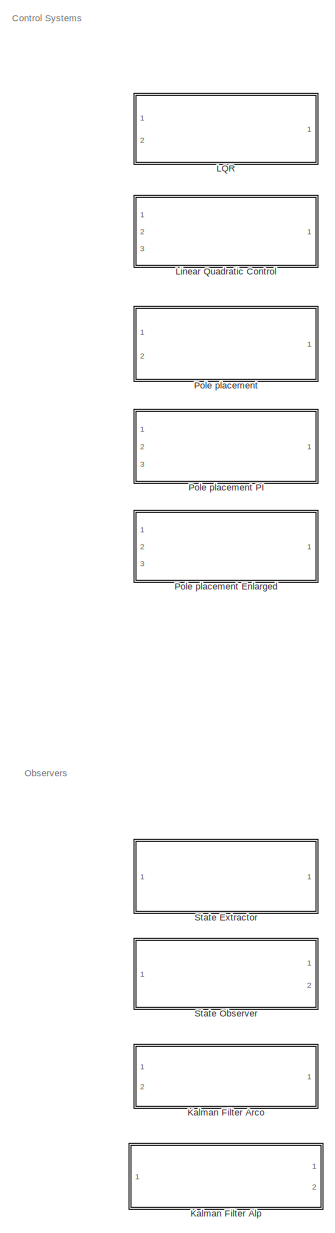
[diagram: root canvas - part 1/5, top left region]
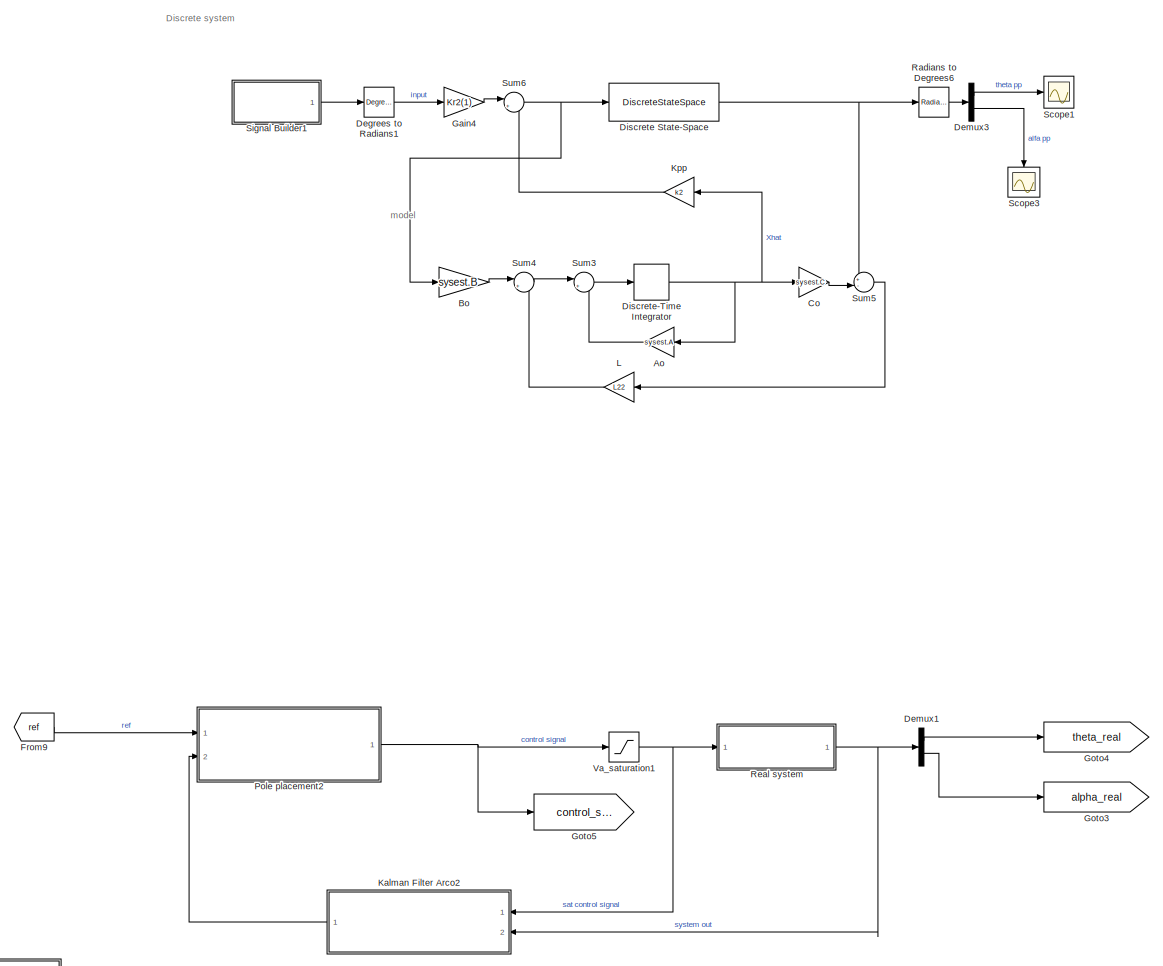
[diagram: root canvas - part 2/5, central region]
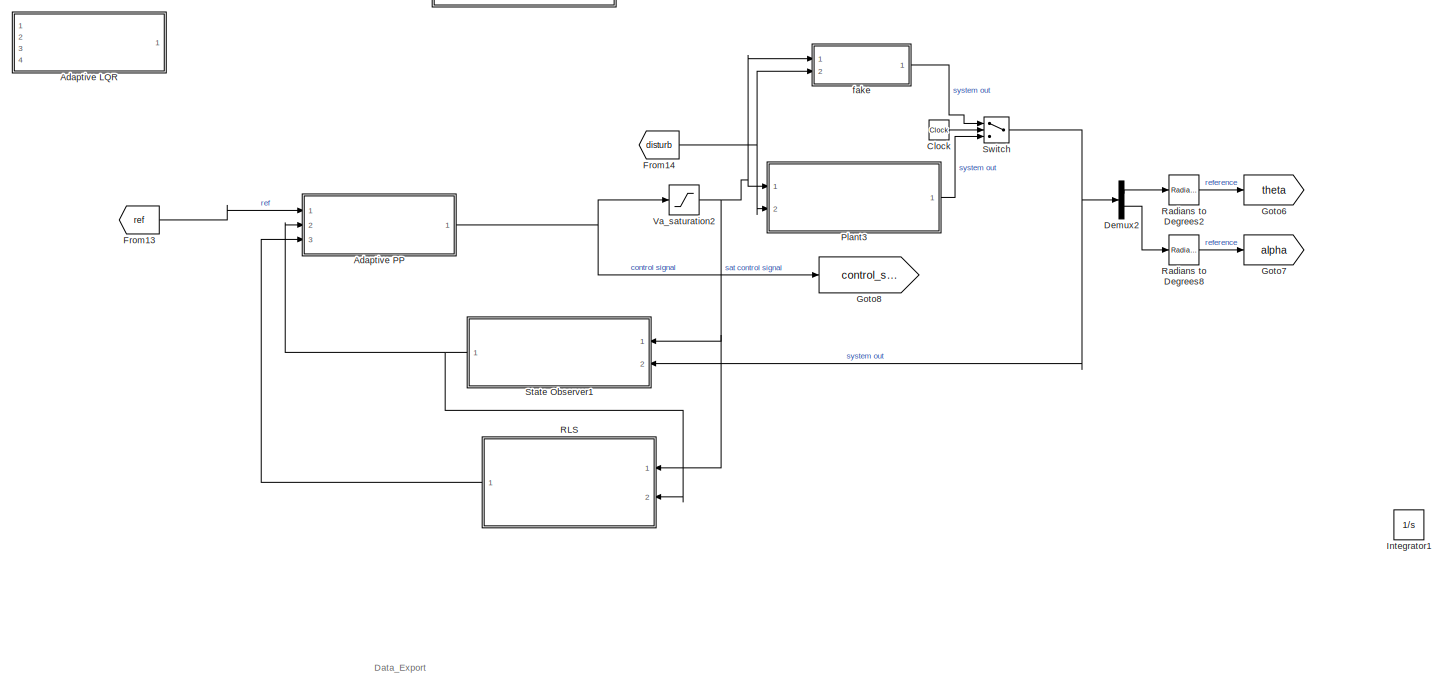
[diagram: root canvas - part 3/5, bottom center region]
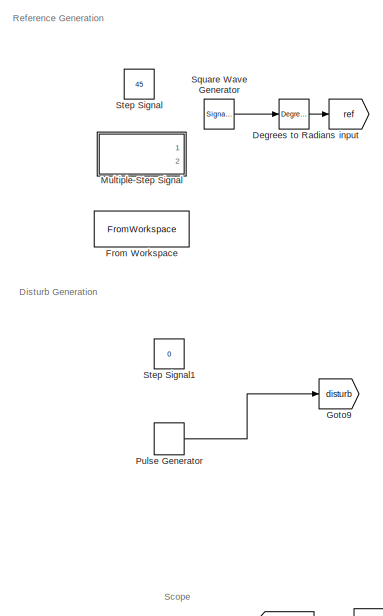
[diagram: root canvas - part 4/5, bottom left region]
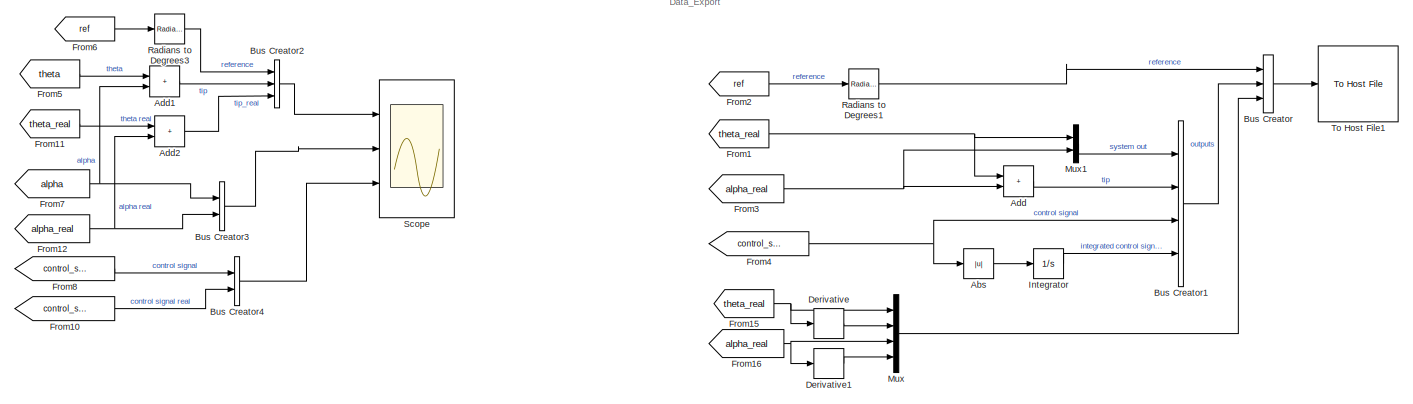
[diagram: root canvas - part 5/5, bottom center region]
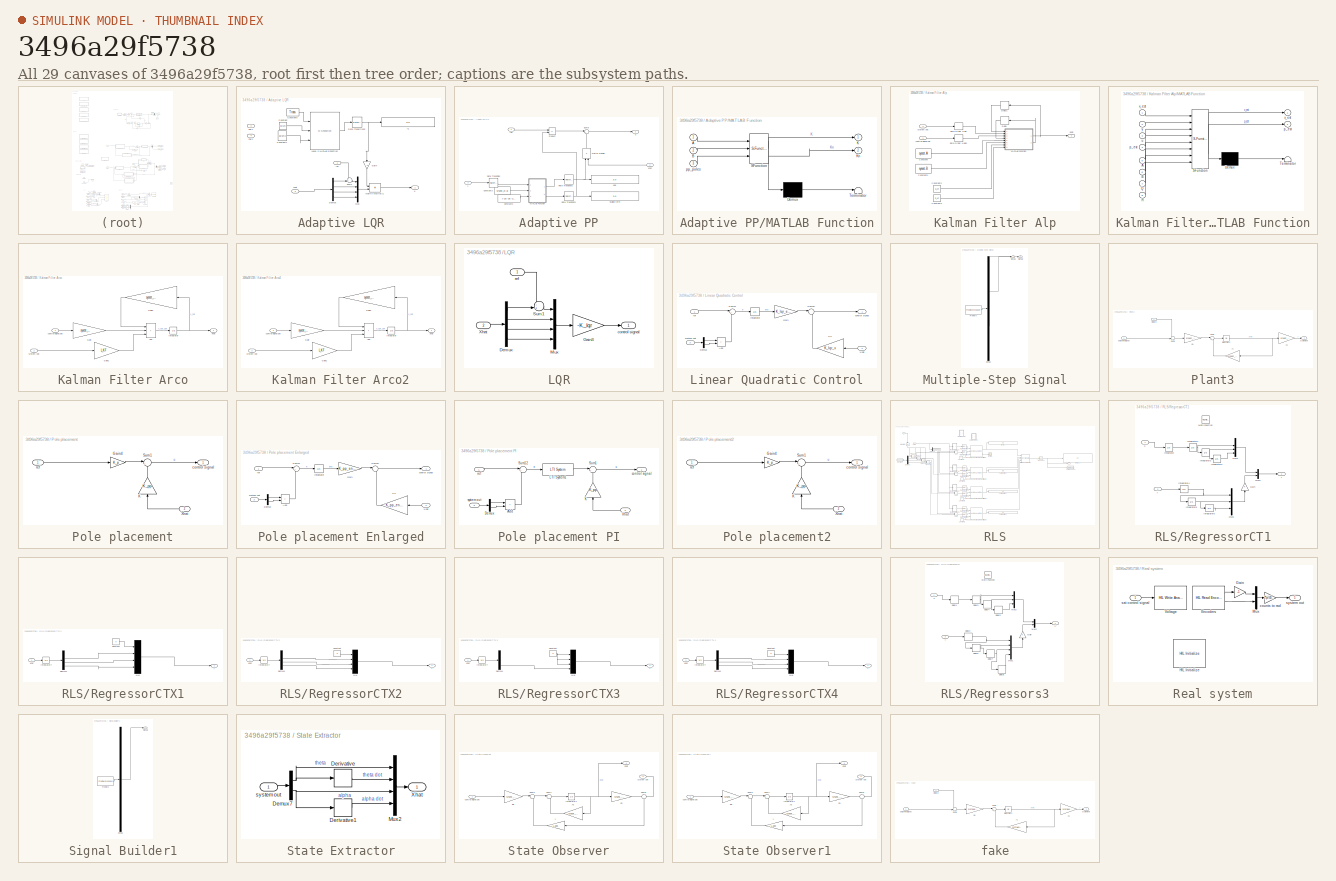
[diagram: thumbnail index - all 29 canvases of the model, root first then tree order]
MODEL slx_3496a29f5738
KIND model
CONFIG AbsTol = auto
CONFIG EnableMultiTasking = on
CONFIG FixedStep = 0.002
CONFIG MaxStep = auto
CONFIG MinStep = auto
CONFIG PostLoadFcn = qc_set_target_type(getConfigSet(bdroot, 'QUARC Default Target Configuration'));
CONFIG RelTol = 1e-3
CONFIG SampleTimeConstraint = Unconstrained
CONFIG Solver = FixedStepAuto
CONFIG SolverName = FixedStepAuto
CONFIG StartTime = 0.0
CONFIG StopTime = inf
BLOCK [Abs] Abs
  Commented = on
  SaturateOnIntegerOverflow = off
BLOCK [SubSystem] Adaptive LQR
  Commented = on
  Ports = [4, 1]
  RequestExecContextInheritance = off
BLOCK [Display] Adaptive LQR/A1
  Decimation = 1
  Ports = [1]
BLOCK [Constant] Adaptive LQR/Constant
  Value = param
BLOCK [Constant] Adaptive LQR/Constant1
  Value = param2
BLOCK [Constant] Adaptive LQR/Constant5
  SampleTime = Ts
  Value = Trans
BLOCK [Demux] Adaptive LQR/Demux
  Ports = [1, 4]
BLOCK [Gain] Adaptive LQR/Gain
  Gain = -1
BLOCK [M-S-Function] Adaptive LQR/Level-2 MATLAB S-Function
  FunctionName = AdaptiveLQRLvl2
  Ports = [3, 1]
BLOCK [Product] Adaptive LQR/Matrix Multiply1
  Multiplication = Matrix(*)
  Ports = [2, 1]
BLOCK [Mux] Adaptive LQR/Mux
  DisplayOption = bar
  Ports = [4, 1]
BLOCK [Inport] Adaptive LQR/Par1
  Port = 3
BLOCK [Inport] Adaptive LQR/Par2
  Port = 4
BLOCK [RateTransition] Adaptive LQR/Rate Transition2
  InitialCondition = k
BLOCK [Sum] Adaptive LQR/Sum1
  Inputs = -+|
  Ports = [2, 1]
BLOCK [Inport] Adaptive LQR/ref
BLOCK [Outport] Adaptive LQR/u
BLOCK [Inport] Adaptive LQR/xhat
  Port = 2
BLOCK [SubSystem] Adaptive PP
  Ports = [3, 1]
  RequestExecContextInheritance = off
BLOCK [Inport] Adaptive PP/A
  Port = 3
BLOCK [Constant] Adaptive PP/Constant2
  SampleTime = 0.2
  Value = [-23 -25 -27 -29]
BLOCK [Constant] Adaptive PP/Constant3
  SampleTime = 0.2
  Value = sysest_ct.B
BLOCK [Display] Adaptive PP/Kpp
  Decimation = 1
  Ports = [1]
BLOCK [SubSystem] Adaptive PP/MATLAB Function
  ErrorFcn = Stateflow.Translate.translate
  PermitHierarchicalResolution = ExplicitOnly
  Ports = [3, 2]
  RequestExecContextInheritance = off
  SFBlockType = MATLAB Function
  TreatAsAtomicUnit = on
BLOCK [Demux] Adaptive PP/MATLAB Function/ Demux 
  Outputs = 1
  Ports = [1, 1]
BLOCK [S-Function] Adaptive PP/MATLAB Function/ SFunction 
  EnableBusSupport = on
  FunctionName = sf_sfun
  PortCounts = [3 3]
  Ports = [3, 3]
  SFcnIsStateOwnerBlock = off
  SFunctionDeploymentMode = off
  Tag = Stateflow S-Function 1
BLOCK [Terminator] Adaptive PP/MATLAB Function/ Terminator 
BLOCK [Inport] Adaptive PP/MATLAB Function/A
BLOCK [Inport] Adaptive PP/MATLAB Function/B
  Port = 2
BLOCK [Outport] Adaptive PP/MATLAB Function/K
BLOCK [Outport] Adaptive PP/MATLAB Function/Kn
  Port = 2
BLOCK [Inport] Adaptive PP/MATLAB Function/pp_poles
  Port = 3
BLOCK [Product] Adaptive PP/Matrix Multiply
  Multiplication = Matrix(*)
  Ports = [2, 1]
BLOCK [Product] Adaptive PP/Product
  Ports = [2, 1]
BLOCK [RateTransition] Adaptive PP/Rate Transition
  InitialCondition = sysest_ct.A
  OutPortSampleTime = 0.2
BLOCK [RateTransition] Adaptive PP/Rate Transition2
  InitialCondition = k
BLOCK [RateTransition] Adaptive PP/Rate Transition3
  InitialCondition = Kr
BLOCK [Display] Adaptive PP/Scaling term
  Decimation = 1
  Ports = [1]
BLOCK [Sum] Adaptive PP/Sum6
  Inputs = |+-
  Ports = [2, 1]
BLOCK [Inport] Adaptive PP/ref
BLOCK [Outport] Adaptive PP/u
BLOCK [Inport] Adaptive PP/xhat
  Port = 2
BLOCK [Sum] Add
  Commented = on
  IconShape = rectangular
  Ports = [2, 1]
BLOCK [Sum] Add1
  IconShape = rectangular
  Ports = [2, 1]
BLOCK [Sum] Add2
  IconShape = rectangular
  Ports = [2, 1]
BLOCK [Gain] Ao
  Commented = on
  Gain = sysest.A
  Multiplication = Matrix(K*u)
BLOCK [Gain] Bo
  Commented = on
  Gain = sysest.B
  Multiplication = Matrix(K*u)
BLOCK [BusCreator] Bus Creator
  Commented = on
  DisplayOption = bar
  InheritFromInputs = on
  Inputs = 3
  Ports = [3, 1]
BLOCK [BusCreator] Bus Creator1
  Commented = on
  DisplayOption = bar
  InheritFromInputs = on
  Inputs = 4
  Ports = [4, 1]
BLOCK [BusCreator] Bus Creator2
  DisplayOption = bar
  InheritFromInputs = on
  Inputs = 3
  Ports = [3, 1]
BLOCK [BusCreator] Bus Creator3
  DisplayOption = bar
  InheritFromInputs = on
  Inputs = 2
  Ports = [2, 1]
BLOCK [BusCreator] Bus Creator4
  DisplayOption = bar
  InheritFromInputs = on
  Inputs = 2
  Ports = [2, 1]
BLOCK [Clock] Clock
BLOCK [Gain] Co
  Commented = on
  Gain = sysest.C
  Multiplication = Matrix(K*u)
BLOCK [Reference] Degrees to Radians  REF=simulink_extras/Transformations/Degrees to
Radians
  Ports = [1, 1]
  SourceBlock = simulink_extras/Transformations/Degrees to\nRadians
  SourceProductBaseCode = SL
  SourceType = DegreesToRadians
BLOCK [Reference] Degrees to Radians1  REF=simulink_extras/Transformations/Degrees to
Radians
  Commented = on
  Ports = [1, 1]
  SourceBlock = simulink_extras/Transformations/Degrees to\nRadians
  SourceProductBaseCode = SL
  SourceType = DegreesToRadians
BLOCK [Demux] Demux1
  Commented = on
  Outputs = 2
  Ports = [1, 2]
BLOCK [Demux] Demux2
  Outputs = 2
  Ports = [1, 2]
BLOCK [Demux] Demux3
  Commented = on
  Outputs = 2
  Ports = [1, 2]
BLOCK [Derivative] Derivative
  Commented = on
BLOCK [Derivative] Derivative1
  Commented = on
BLOCK [DiscreteStateSpace] Discrete State-Space
  A = sysest.A
  B = sysest.B
  C = sysest.C
  Commented = on
  D = sysest.D
  SampleTime = 0.002
BLOCK [DiscreteIntegrator] Discrete-Time Integrator
  Commented = on
  ICPrevOutput = DiscIntNeverNeededParam
  ICPrevScaledInput = DiscIntNeverNeededParam
  InitialConditionSetting = Auto
  Ports = [1, 1]
  SampleTime = 0.002
BLOCK [FromWorkspace] From Workspace
  Commented = on
  VariableName = reference_simulink
BLOCK [From] From1
  Commented = on
  GotoTag = theta_real
BLOCK [From] From10
  GotoTag = control_signal_real
BLOCK [From] From11
  GotoTag = theta_real
BLOCK [From] From12
  GotoTag = alpha_real
BLOCK [From] From13
  GotoTag = ref
BLOCK [From] From14
  GotoTag = disturb
BLOCK [From] From15
  Commented = on
  GotoTag = theta_real
BLOCK [From] From16
  Commented = on
  GotoTag = alpha_real
BLOCK [From] From2
  Commented = on
  GotoTag = ref
BLOCK [From] From3
  Commented = on
  GotoTag = alpha_real
BLOCK [From] From4
  Commented = on
  GotoTag = control_signal
BLOCK [From] From5
  GotoTag = theta
BLOCK [From] From6
  GotoTag = ref
BLOCK [From] From7
  GotoTag = alpha
BLOCK [From] From8
  GotoTag = control_signal
BLOCK [From] From9
  Commented = on
  GotoTag = ref
BLOCK [Gain] Gain4
  Commented = on
  Gain = Kr2(1)
BLOCK [Goto] Goto3
  Commented = on
  GotoTag = alpha_real
BLOCK [Goto] Goto4
  Commented = on
  GotoTag = theta_real
BLOCK [Goto] Goto5
  Commented = on
  GotoTag = control_signal_real
BLOCK [Goto] Goto6
  GotoTag = theta
BLOCK [Goto] Goto7
  GotoTag = alpha
BLOCK [Goto] Goto8
  GotoTag = control_signal
BLOCK [Goto] Goto9
  GotoTag = disturb
BLOCK [Integrator] Integrator
  Commented = on
  Ports = [1, 1]
BLOCK [Integrator] Integrator1
  Ports = [1, 1]
BLOCK [SubSystem] Kalman Filter Alp
  Commented = on
  Ports = [2, 1]
  RequestExecContextInheritance = off
BLOCK [Constant] Kalman Filter Alp/Constant
  Value = sysest.A
BLOCK [Constant] Kalman Filter Alp/Constant1
  Value = sysest.B
BLOCK [Constant] Kalman Filter Alp/Constant2
  Value = Q_KF
BLOCK [Constant] Kalman Filter Alp/Constant3
  Value = R_KF
BLOCK [Delay] Kalman Filter Alp/Delay
  DelayLength = 1
  InitialCondition = eye(4)
  InputPortMap = u0
  Ports = [1, 1]
BLOCK [Delay] Kalman Filter Alp/Delay1
  DelayLength = 1
  InitialCondition = [0;0;0;0]
  InputPortMap = u0
  Ports = [1, 1]
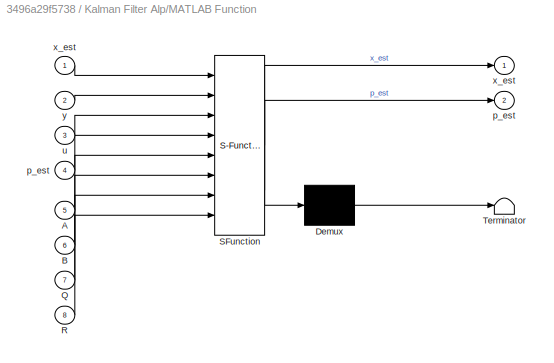
BLOCK [SubSystem] Kalman Filter Alp/MATLAB Function
  ErrorFcn = Stateflow.Translate.translate
  PermitHierarchicalResolution = ExplicitOnly
  Ports = [8, 2]
  RequestExecContextInheritance = off
  SFBlockType = MATLAB Function
  TreatAsAtomicUnit = on
BLOCK [Demux] Kalman Filter Alp/MATLAB Function/ Demux 
  Outputs = 1
  Ports = [1, 1]
BLOCK [S-Function] Kalman Filter Alp/MATLAB Function/ SFunction 
  EnableBusSupport = on
  FunctionName = sf_sfun
  PortCounts = [8 3]
  Ports = [8, 3]
  SFcnIsStateOwnerBlock = off
  SFunctionDeploymentMode = off
  Tag = Stateflow S-Function 2
BLOCK [Terminator] Kalman Filter Alp/MATLAB Function/ Terminator 
BLOCK [Inport] Kalman Filter Alp/MATLAB Function/A
  Port = 5
BLOCK [Inport] Kalman Filter Alp/MATLAB Function/B
  Port = 6
BLOCK [Inport] Kalman Filter Alp/MATLAB Function/Q
  Port = 7
BLOCK [Inport] Kalman Filter Alp/MATLAB Function/R
  Port = 8
BLOCK [Outport] Kalman Filter Alp/MATLAB Function/p_est
  Port = 2
BLOCK [Inport] Kalman Filter Alp/MATLAB Function/p_est 
  Port = 4
BLOCK [Inport] Kalman Filter Alp/MATLAB Function/u
  Port = 3
BLOCK [Outport] Kalman Filter Alp/MATLAB Function/x_est
BLOCK [Inport] Kalman Filter Alp/MATLAB Function/x_est 
BLOCK [Inport] Kalman Filter Alp/MATLAB Function/y
  Port = 2
BLOCK [Outport] Kalman Filter Alp/Xhat
BLOCK [ZeroOrderHold] Kalman Filter Alp/Zero-Order Hold
  SampleTime = 0.002
BLOCK [ZeroOrderHold] Kalman Filter Alp/Zero-Order Hold1
  SampleTime = 0.002
BLOCK [Inport] Kalman Filter Alp/control signal sat
BLOCK [Inport] Kalman Filter Alp/system out
  Port = 2
BLOCK [SubSystem] Kalman Filter Arco
  Commented = on
  Ports = [2, 1]
  RequestExecContextInheritance = off
BLOCK [Sum] Kalman Filter Arco/Add
  IconShape = rectangular
  Inputs = +++
  Ports = [3, 1]
BLOCK [Gain] Kalman Filter Arco/Gain
  Gain = sysest_ct.B
  Multiplication = Matrix(K*u) (u vector)
BLOCK [Gain] Kalman Filter Arco/Gain1
  Gain = L_KF
  Multiplication = Matrix(K*u) (u vector)
BLOCK [Gain] Kalman Filter Arco/Gain2
  Gain = sysest_ct.A - L_KF * sysest_ct.C
  Multiplication = Matrix(K*u) (u vector)
BLOCK [Integrator] Kalman Filter Arco/Integrator
  Ports = [1, 1]
BLOCK [Outport] Kalman Filter Arco/Xhat
  PortDimensions = 4
BLOCK [Inport] Kalman Filter Arco/control signal sat
  PortDimensions = 1
BLOCK [Inport] Kalman Filter Arco/system out
  Port = 2
  PortDimensions = 2
BLOCK [SubSystem] Kalman Filter Arco2
  Commented = on
  Ports = [2, 1]
  RequestExecContextInheritance = off
BLOCK [Sum] Kalman Filter Arco2/Add
  IconShape = rectangular
  Inputs = +++
  Ports = [3, 1]
BLOCK [Gain] Kalman Filter Arco2/Gain
  Gain = sysest_ct.B
  Multiplication = Matrix(K*u) (u vector)
BLOCK [Gain] Kalman Filter Arco2/Gain1
  Gain = L_KF
  Multiplication = Matrix(K*u) (u vector)
BLOCK [Gain] Kalman Filter Arco2/Gain2
  Gain = sysest_ct.A - L_KF * sysest_ct.C
  Multiplication = Matrix(K*u) (u vector)
BLOCK [Integrator] Kalman Filter Arco2/Integrator
  Ports = [1, 1]
BLOCK [Outport] Kalman Filter Arco2/Xhat
  PortDimensions = 4
BLOCK [Inport] Kalman Filter Arco2/control signal sat
  PortDimensions = 1
BLOCK [Inport] Kalman Filter Arco2/system out
  Port = 2
  PortDimensions = 2
BLOCK [Gain] Kpp
  Commented = on
  Gain = k2
  Multiplication = Matrix(K*u)
BLOCK [Gain] L
  Commented = on
  Gain = L22
  Multiplication = Matrix(K*u)
BLOCK [SubSystem] LQR
  Commented = on
  Ports = [2, 1]
  RequestExecContextInheritance = off
BLOCK [Outport] LQR/ control signal
BLOCK [Demux] LQR/Demux
  Ports = [1, 4]
BLOCK [Gain] LQR/Gain3
  Gain = -K_lqr
  Multiplication = Matrix(K*u)
BLOCK [Mux] LQR/Mux
  DisplayOption = bar
  Ports = [4, 1]
BLOCK [Sum] LQR/Sum1
  Inputs = -+|
  Ports = [2, 1]
BLOCK [Inport] LQR/Xhat
  Port = 2
BLOCK [Inport] LQR/ref
BLOCK [SubSystem] Linear Quadratic Control
  Commented = on
  Ports = [3, 1]
  RequestExecContextInheritance = off
BLOCK [Outport] Linear Quadratic Control/ control signal
BLOCK [Sum] Linear Quadratic Control/Add
  IconShape = rectangular
  Ports = [2, 1]
BLOCK [Demux] Linear Quadratic Control/Demux
  Outputs = 2
  Ports = [1, 2]
BLOCK [Gain] Linear Quadratic Control/Gain
  Gain = K_lqr_eta
BLOCK [Integrator] Linear Quadratic Control/Integrator
  Ports = [1, 1]
BLOCK [Gain] Linear Quadratic Control/K2
  Gain = K_lqr_x
  Multiplication = Matrix(K*u)
BLOCK [Sum] Linear Quadratic Control/Sum10
  Inputs = |--
  Ports = [2, 1]
BLOCK [Sum] Linear Quadratic Control/Sum12
  Inputs = |+-
  Ports = [2, 1]
BLOCK [Inport] Linear Quadratic Control/Xhat
  Port = 2
BLOCK [Inport] Linear Quadratic Control/ref
BLOCK [Inport] Linear Quadratic Control/system out
  Port = 3
BLOCK [SubSystem] Multiple-Step Signal
  ClipboardFcn = sigbuilder_block('clipboard');
  CloseFcn = sigbuilder_block('close');
  ContinueFcn = sigbuilder_block('continue');
  CopyFcn = sigbuilder_block('copy');
  DeleteFcn = sigbuilder_block('delete');
  LoadFcn = sigbuilder_block('load');
  MaskHideContents = on
  ModelCloseFcn = sigbuilder_block('modelClose');
  NameChangeFcn = sigbuilder_block('namechange');
  OpenFcn = sigbuilder_block('open',[5.4 5.4 1141.2 580.8 ]);
  PauseFcn = sigbuilder_block('pause');
  Ports = [0, 2]
  PreSaveFcn = sigbuilder_block('preSave');
  RequestExecContextInheritance = off
  StartFcn = sigbuilder_block('start');
  StopFcn = sigbuilder_block('stop');
  Tag = STV Subsys
BLOCK [Demux] Multiple-Step Signal/Demux
  DisplayOption = none
  Outputs = 2
  Ports = [1, 2]
  Tag = STV Demux
BLOCK [FromWorkspace] Multiple-Step Signal/FromWs
  Tag = STV FromWs
  VariableName = tuvar
BLOCK [Outport] Multiple-Step Signal/Signal 1
  Tag = STV Outport
BLOCK [Outport] Multiple-Step Signal/Signal 2
  Port = 2
  Tag = STV Outport
BLOCK [Mux] Mux
  Commented = on
  DisplayOption = bar
  Ports = [4, 1]
BLOCK [Mux] Mux1
  Commented = on
  DisplayOption = bar
  Inputs = 2
  Ports = [2, 1]
BLOCK [SubSystem] Plant3
  Ports = [2, 1]
  RequestExecContextInheritance = off
BLOCK [Gain] Plant3/A1
  Gain = sysest_ct.A
  Multiplication = Matrix(K*u)
BLOCK [Gain] Plant3/B1
  Gain = sysest_ct.B
  Multiplication = Matrix(K*u)
BLOCK [Gain] Plant3/C1
  Gain = sysest_ct.C
  Multiplication = Matrix(K*u)
BLOCK [Integrator] Plant3/Integrator2
  Ports = [1, 1]
BLOCK [Sum] Plant3/Sum7
  Inputs = |++
  Ports = [2, 1]
BLOCK [Sum] Plant3/Sum9
  Inputs = ++|
  Ports = [2, 1]
BLOCK [Inport] Plant3/disturb
  Port = 2
BLOCK [Inport] Plant3/sat control signal
BLOCK [Outport] Plant3/system out
BLOCK [SubSystem] Pole placement
  Commented = on
  Ports = [2, 1]
  RequestExecContextInheritance = off
BLOCK [SubSystem] Pole placement Enlarged
  Commented = on
  Ports = [3, 1]
  RequestExecContextInheritance = off
BLOCK [Outport] Pole placement Enlarged/ control signal
BLOCK [Sum] Pole placement Enlarged/Add
  IconShape = rectangular
  Ports = [2, 1]
BLOCK [Demux] Pole placement Enlarged/Demux
  Outputs = 2
  Ports = [1, 2]
BLOCK [Gain] Pole placement Enlarged/Gain
  Gain = K_pp_en_eta
BLOCK [Integrator] Pole placement Enlarged/Integrator
  Ports = [1, 1]
BLOCK [Gain] Pole placement Enlarged/K2
  Gain = K_pp_en_x
  Multiplication = Matrix(K*u)
BLOCK [Sum] Pole placement Enlarged/Sum10
  Inputs = |--
  Ports = [2, 1]
BLOCK [Sum] Pole placement Enlarged/Sum12
  Inputs = |+-
  Ports = [2, 1]
BLOCK [Inport] Pole placement Enlarged/Xhat
  Port = 2
BLOCK [Inport] Pole placement Enlarged/ref
BLOCK [Inport] Pole placement Enlarged/system out
  Port = 3
BLOCK [SubSystem] Pole placement PI
  Commented = on
  Ports = [3, 1]
  RequestExecContextInheritance = off
BLOCK [Outport] Pole placement PI/ control signal
BLOCK [Sum] Pole placement PI/Add
  IconShape = rectangular
  Ports = [2, 1]
BLOCK [Demux] Pole placement PI/Demux
  Outputs = 2
  Ports = [1, 2]
BLOCK [Gain] Pole placement PI/K
  Gain = K_pp
  Multiplication = Matrix(K*u)
BLOCK [Reference] Pole placement PI/LTI System1  REF=cstblocks/LTI System
  Ports = [1, 1]
  SourceBlock = cstblocks/LTI System
  SourceProductBaseCode = CT
  SourceType = LTI Block
BLOCK [Sum] Pole placement PI/Sum1
  Inputs = |+-
  Ports = [2, 1]
BLOCK [Sum] Pole placement PI/Sum12
  Inputs = |+-
  Ports = [2, 1]
BLOCK [Inport] Pole placement PI/Xhat
  Port = 2
BLOCK [Inport] Pole placement PI/ref
BLOCK [Inport] Pole placement PI/system out
  Port = 3
BLOCK [Outport] Pole placement/ control signal
BLOCK [Gain] Pole placement/Gain4
  Gain = K_p
BLOCK [Gain] Pole placement/K
  Gain = K_pp
  Multiplication = Matrix(K*u)
BLOCK [Sum] Pole placement/Sum1
  Inputs = |+-
  Ports = [2, 1]
BLOCK [Inport] Pole placement/Xhat
  Port = 2
BLOCK [Inport] Pole placement/ref
BLOCK [SubSystem] Pole placement2
  Commented = on
  Ports = [2, 1]
  RequestExecContextInheritance = off
BLOCK [Outport] Pole placement2/ control signal
BLOCK [Gain] Pole placement2/Gain4
  Gain = K_p
BLOCK [Gain] Pole placement2/K
  Gain = K_pp
  Multiplication = Matrix(K*u)
BLOCK [Sum] Pole placement2/Sum1
  Inputs = |+-
  Ports = [2, 1]
BLOCK [Inport] Pole placement2/Xhat
  Port = 2
BLOCK [Inport] Pole placement2/ref
BLOCK [DiscretePulseGenerator] Pulse Generator
  Amplitude = 0.001
  Period = 1
  Ports = [0, 1]
  PulseType = Time based
  PulseWidth = 50
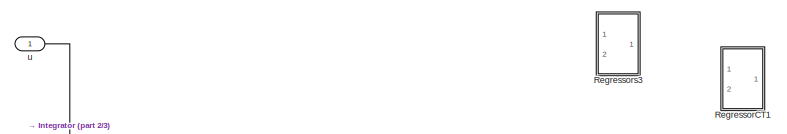
[diagram: RLS - part 1/3, top left region]
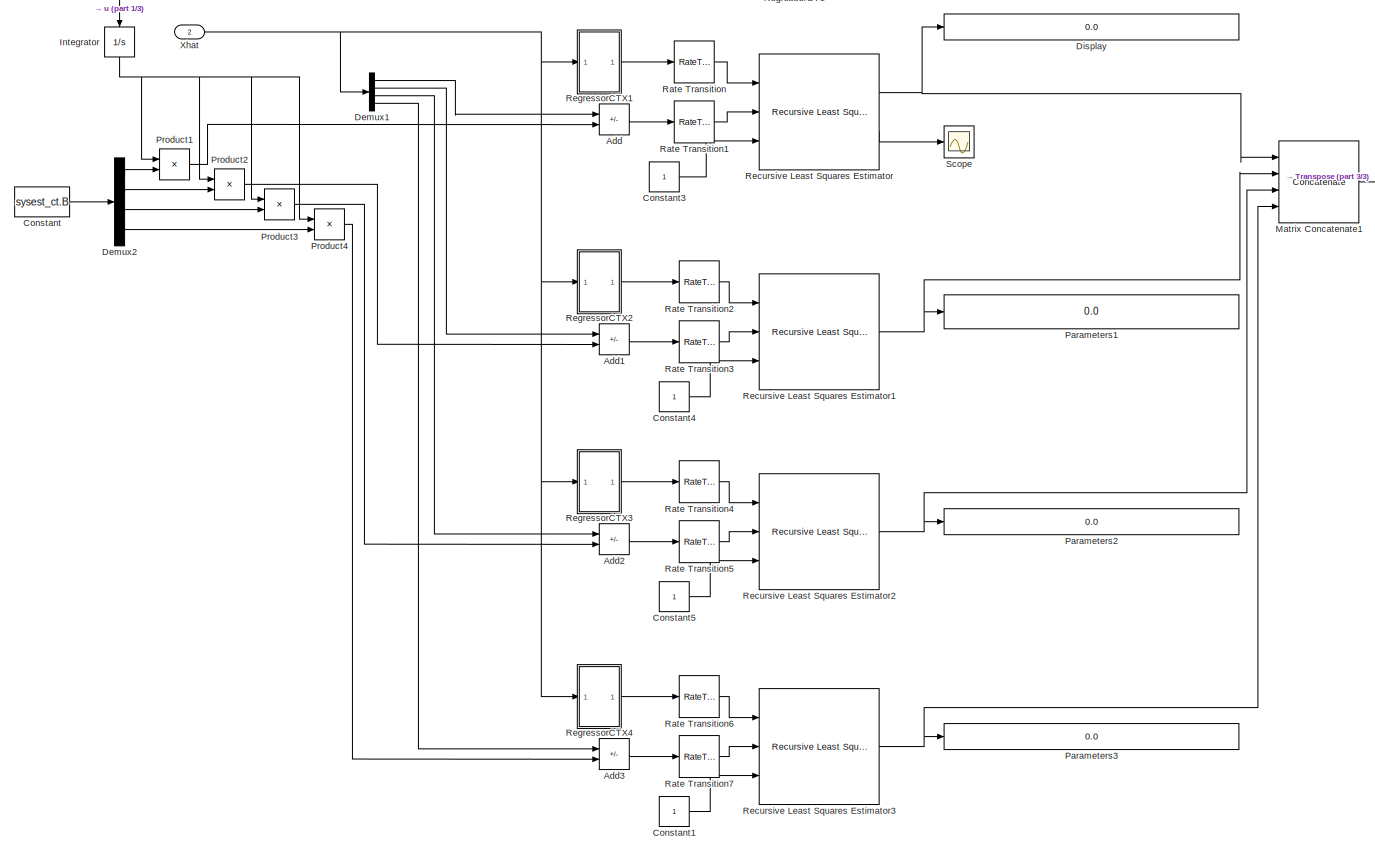
[diagram: RLS - part 2/3, center side, full height]
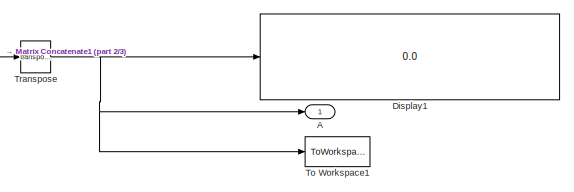
[diagram: RLS - part 3/3, middle right region]
BLOCK [SubSystem] RLS
  Ports = [2, 1]
  RequestExecContextInheritance = off
BLOCK [Outport] RLS/A
BLOCK [Sum] RLS/Add
  IconShape = rectangular
  Inputs = +-
  Ports = [2, 1]
BLOCK [Sum] RLS/Add1
  IconShape = rectangular
  Inputs = +-
  Ports = [2, 1]
BLOCK [Sum] RLS/Add2
  IconShape = rectangular
  Inputs = +-
  Ports = [2, 1]
BLOCK [Sum] RLS/Add3
  IconShape = rectangular
  Inputs = +-
  Ports = [2, 1]
BLOCK [Constant] RLS/Constant
  Value = sysest_ct.B
BLOCK [Constant] RLS/Constant1
  SampleTime = 0.002
BLOCK [Constant] RLS/Constant3
  SampleTime = 0.002
BLOCK [Constant] RLS/Constant4
  SampleTime = 0.002
BLOCK [Constant] RLS/Constant5
  SampleTime = 0.002
BLOCK [Demux] RLS/Demux1
  Ports = [1, 4]
BLOCK [Demux] RLS/Demux2
  Ports = [1, 4]
BLOCK [Display] RLS/Display
  Decimation = 1
  Ports = [1]
BLOCK [Display] RLS/Display1
  Decimation = 1
  Ports = [1]
BLOCK [Integrator] RLS/Integrator
  Ports = [1, 1]
BLOCK [Concatenate] RLS/Matrix Concatenate1
  ConcatenateDimension = 2
  Mode = Multidimensional array
  NumInputs = 4
  Ports = [4, 1]
BLOCK [Display] RLS/Parameters1
  Decimation = 1
  Ports = [1]
BLOCK [Display] RLS/Parameters2
  Decimation = 1
  Ports = [1]
BLOCK [Display] RLS/Parameters3
  Decimation = 1
  Ports = [1]
BLOCK [Product] RLS/Product1
  Ports = [2, 1]
BLOCK [Product] RLS/Product2
  Ports = [2, 1]
BLOCK [Product] RLS/Product3
  Ports = [2, 1]
BLOCK [Product] RLS/Product4
  Ports = [2, 1]
BLOCK [RateTransition] RLS/Rate Transition
  OutPortSampleTime = 0.002
BLOCK [RateTransition] RLS/Rate Transition1
  OutPortSampleTime = 0.002
BLOCK [RateTransition] RLS/Rate Transition2
  OutPortSampleTime = 0.002
BLOCK [RateTransition] RLS/Rate Transition3
  OutPortSampleTime = 0.002
BLOCK [RateTransition] RLS/Rate Transition4
  OutPortSampleTime = 0.002
BLOCK [RateTransition] RLS/Rate Transition5
  OutPortSampleTime = 0.002
BLOCK [RateTransition] RLS/Rate Transition6
  OutPortSampleTime = 0.002
BLOCK [RateTransition] RLS/Rate Transition7
  OutPortSampleTime = 0.002
BLOCK [Reference] RLS/Recursive Least Squares Estimator  REF=ctrlSharedLib/Recursive Least Squares Estimator
  Ports = [3, 2]
  SourceBlock = ctrlSharedLib/Recursive Least Squares Estimator
  SourceProductBaseCode = CT,ID
  SourceType = idEstimatorsRLS
BLOCK [Reference] RLS/Recursive Least Squares Estimator1  REF=ctrlSharedLib/Recursive Least Squares Estimator
  Ports = [3, 1]
  SourceBlock = ctrlSharedLib/Recursive Least Squares Estimator
  SourceProductBaseCode = CT,ID
  SourceType = idEstimatorsRLS
BLOCK [Reference] RLS/Recursive Least Squares Estimator2  REF=ctrlSharedLib/Recursive Least Squares Estimator
  Ports = [3, 1]
  SourceBlock = ctrlSharedLib/Recursive Least Squares Estimator
  SourceProductBaseCode = CT,ID
  SourceType = idEstimatorsRLS
BLOCK [Reference] RLS/Recursive Least Squares Estimator3  REF=ctrlSharedLib/Recursive Least Squares Estimator
  Ports = [3, 1]
  SourceBlock = ctrlSharedLib/Recursive Least Squares Estimator
  SourceProductBaseCode = CT,ID
  SourceType = idEstimatorsRLS
BLOCK [SubSystem] RLS/RegressorCT1
  Commented = on
  Ports = [2, 1]
  RequestExecContextInheritance = off
BLOCK [Gain] RLS/RegressorCT1/Gain
BLOCK [Integrator] RLS/RegressorCT1/Integrator
  Ports = [1, 1]
BLOCK [Integrator] RLS/RegressorCT1/Integrator1
  Ports = [1, 1]
BLOCK [Integrator] RLS/RegressorCT1/Integrator2
  Ports = [1, 1]
BLOCK [Integrator] RLS/RegressorCT1/Integrator3
  Ports = [1, 1]
BLOCK [Integrator] RLS/RegressorCT1/Integrator4
  Ports = [1, 1]
BLOCK [Integrator] RLS/RegressorCT1/Integrator5
  Ports = [1, 1]
BLOCK [Integrator] RLS/RegressorCT1/Integrator6
  Ports = [1, 1]
BLOCK [Math] RLS/RegressorCT1/Math Function
  Operator = magnitude^2
  Ports = [1, 1]
  SignedPower = on
BLOCK [Mux] RLS/RegressorCT1/Mux1
  DisplayOption = bar
  Inputs = 3
  Ports = [3, 1]
BLOCK [Mux] RLS/RegressorCT1/Mux2
  DisplayOption = bar
  Inputs = 2
  Ports = [2, 1]
BLOCK [Mux] RLS/RegressorCT1/Mux3
  DisplayOption = bar
  Ports = [4, 1]
BLOCK [Outport] RLS/RegressorCT1/r
  VectorParamsAs1DForOutWhenUnconnected = off
BLOCK [Inport] RLS/RegressorCT1/u
BLOCK [Inport] RLS/RegressorCT1/y
  Port = 2
BLOCK [SubSystem] RLS/RegressorCTX1
  Ports = [1, 1]
  RequestExecContextInheritance = off
BLOCK [Constant] RLS/RegressorCTX1/Constant
  Value = 0
BLOCK [Demux] RLS/RegressorCTX1/Demux1
  Ports = [1, 4]
BLOCK [Integrator] RLS/RegressorCTX1/Integrator7
  Ports = [1, 1]
BLOCK [Mux] RLS/RegressorCTX1/Mux
  DisplayOption = bar
  Ports = [4, 1]
BLOCK [Inport] RLS/RegressorCTX1/Xhat
BLOCK [Outport] RLS/RegressorCTX1/r
  VectorParamsAs1DForOutWhenUnconnected = off
BLOCK [SubSystem] RLS/RegressorCTX2
  Ports = [1, 1]
  RequestExecContextInheritance = off
BLOCK [Constant] RLS/RegressorCTX2/Constant
  Value = 0
BLOCK [Demux] RLS/RegressorCTX2/Demux1
  Ports = [1, 4]
BLOCK [Integrator] RLS/RegressorCTX2/Integrator7
  Ports = [1, 1]
BLOCK [Mux] RLS/RegressorCTX2/Mux
  DisplayOption = bar
  Ports = [4, 1]
BLOCK [Inport] RLS/RegressorCTX2/Xhat
BLOCK [Outport] RLS/RegressorCTX2/r
  VectorParamsAs1DForOutWhenUnconnected = off
BLOCK [SubSystem] RLS/RegressorCTX3
  Ports = [1, 1]
  RequestExecContextInheritance = off
BLOCK [Constant] RLS/RegressorCTX3/Constant
  Value = 0
BLOCK [Demux] RLS/RegressorCTX3/Demux1
  Ports = [1, 4]
BLOCK [Integrator] RLS/RegressorCTX3/Integrator7
  Ports = [1, 1]
BLOCK [Mux] RLS/RegressorCTX3/Mux
  DisplayOption = bar
  Ports = [4, 1]
BLOCK [Inport] RLS/RegressorCTX3/Xhat
BLOCK [Outport] RLS/RegressorCTX3/r
  VectorParamsAs1DForOutWhenUnconnected = off
BLOCK [SubSystem] RLS/RegressorCTX4
  Ports = [1, 1]
  RequestExecContextInheritance = off
BLOCK [Constant] RLS/RegressorCTX4/Constant
  Value = 0
BLOCK [Demux] RLS/RegressorCTX4/Demux1
  Ports = [1, 4]
BLOCK [Integrator] RLS/RegressorCTX4/Integrator7
  Ports = [1, 1]
BLOCK [Mux] RLS/RegressorCTX4/Mux
  DisplayOption = bar
  Ports = [4, 1]
BLOCK [Inport] RLS/RegressorCTX4/Xhat
BLOCK [Outport] RLS/RegressorCTX4/r
  VectorParamsAs1DForOutWhenUnconnected = off
BLOCK [SubSystem] RLS/Regressors3
  Commented = on
  Ports = [2, 1]
  RequestExecContextInheritance = off
BLOCK [Delay] RLS/Regressors3/Delay1
  DelayLength = 1
  InitialCondition = 0
  InputPortMap = u0
  Ports = [1, 1]
  SampleTime = 0.002
BLOCK [Delay] RLS/Regressors3/Delay2
  DelayLength = 1
  InitialCondition = 0
  InputPortMap = u0
  Ports = [1, 1]
  SampleTime = 0.002
BLOCK [Delay] RLS/Regressors3/Delay3
  DelayLength = 1
  InitialCondition = 0
  InputPortMap = u0
  Ports = [1, 1]
  SampleTime = 0.002
BLOCK [Delay] RLS/Regressors3/Delay4
  DelayLength = 1
  InitialCondition = 0
  InputPortMap = u0
  Ports = [1, 1]
  SampleTime = 0.002
BLOCK [Delay] RLS/Regressors3/Delay5
  DelayLength = 1
  InitialCondition = 0
  InputPortMap = u0
  Ports = [1, 1]
  SampleTime = 0.002
BLOCK [Delay] RLS/Regressors3/Delay6
  DelayLength = 1
  InitialCondition = 0
  InputPortMap = u0
  Ports = [1, 1]
  SampleTime = 0.002
BLOCK [Delay] RLS/Regressors3/Delay7
  DelayLength = 1
  InitialCondition = 0
  InputPortMap = u0
  Ports = [1, 1]
  SampleTime = 0.002
BLOCK [Delay] RLS/Regressors3/Delay8
  DelayLength = 1
  InitialCondition = 0
  InputPortMap = u0
  Ports = [1, 1]
  SampleTime = 0.002
BLOCK [Gain] RLS/Regressors3/Gain
BLOCK [Math] RLS/Regressors3/Math Function
  Operator = magnitude^2
  Ports = [1, 1]
  SignedPower = on
BLOCK [Mux] RLS/Regressors3/Mux1
  DisplayOption = bar
  Ports = [4, 1]
BLOCK [Mux] RLS/Regressors3/Mux2
  DisplayOption = bar
  Inputs = 2
  Ports = [2, 1]
BLOCK [Mux] RLS/Regressors3/Mux3
  DisplayOption = bar
  Inputs = 3
  Ports = [3, 1]
BLOCK [Outport] RLS/Regressors3/r
  VectorParamsAs1DForOutWhenUnconnected = off
BLOCK [Inport] RLS/Regressors3/u
BLOCK [Inport] RLS/Regressors3/y
  Port = 2
BLOCK [Scope] RLS/Scope
  Floating = off
  NumInputPorts = 1
  Ports = [1]
  ScopeSpecificationString = Simulink.scopes.TimeScopeBlockCfg('CurrentConfiguration', extmgr.ConfigurationSet(extmgr.Configuration('Core','General UI',true),extmgr.Configuration('Core','Source UI',true),extmgr.Configuration('Sources','WiredSimulink',true,'DataLoggingVariableName','ScopeData1'),extmgr.Configuration('Visuals','Time Domain',true,'SerializedDisplays',{struct('MinYLimReal','-0.00238','MaxYLimReal','0.00068','YLab...<+1505ch>
BLOCK [ToWorkspace] RLS/To Workspace1
  FixptAsFi = on
  MaxDataPoints = inf
  Ports = [1]
  SampleTime = 0.002
  SaveFormat = Timeseries
  VariableName = MatA
BLOCK [Math] RLS/Transpose
  Operator = transpose
  Ports = [1, 1]
BLOCK [Inport] RLS/Xhat
  Port = 2
BLOCK [Inport] RLS/u
BLOCK [Reference] Radians to Degrees1  REF=simulink_extras/Transformations/Radians
to Degrees
  Commented = on
  Ports = [1, 1]
  SourceBlock = simulink_extras/Transformations/Radians\nto Degrees
  SourceProductBaseCode = SL
  SourceType = RadiansToDegrees
BLOCK [Reference] Radians to Degrees2  REF=simulink_extras/Transformations/Radians
to Degrees
  Ports = [1, 1]
  SourceBlock = simulink_extras/Transformations/Radians\nto Degrees
  SourceProductBaseCode = SL
  SourceType = RadiansToDegrees
BLOCK [Reference] Radians to Degrees3  REF=simulink_extras/Transformations/Radians
to Degrees
  Ports = [1, 1]
  SourceBlock = simulink_extras/Transformations/Radians\nto Degrees
  SourceProductBaseCode = SL
  SourceType = RadiansToDegrees
BLOCK [Reference] Radians to Degrees6  REF=simulink_extras/Transformations/Radians
to Degrees
  Commented = on
  Ports = [1, 1]
  SourceBlock = simulink_extras/Transformations/Radians\nto Degrees
  SourceProductBaseCode = SL
  SourceType = RadiansToDegrees
BLOCK [Reference] Radians to Degrees8  REF=simulink_extras/Transformations/Radians
to Degrees
  Ports = [1, 1]
  SourceBlock = simulink_extras/Transformations/Radians\nto Degrees
  SourceProductBaseCode = SL
  SourceType = RadiansToDegrees
BLOCK [SubSystem] Real system
  Commented = on
  Ports = [1, 1]
  RequestExecContextInheritance = off
BLOCK [Reference] Real system/Encoders  REF=quarc_library/Data Acquisition/Generic/Timebases/HIL Read Encoder
Timebase
  AttributesFormatString = (%<object_name>)
  Ports = [0, 2]
  SourceBlock = quarc_library/Data Acquisition/Generic/Timebases/HIL Read Encoder\nTimebase
  SourceType = HIL Read Encoder Timebase
  UserDataPersistent = on
BLOCK [Gain] Real system/Gain
  Gain = -1
BLOCK [Reference] Real system/HIL Initialize  REF=quarc_library/Data Acquisition/Generic/Configuration/HIL Initialize
  AttributesFormatString = %<object_name> (%<board_type>-%<board_number>)
  Ports = []
  Priority = -99
  SourceBlock = quarc_library/Data Acquisition/Generic/Configuration/HIL Initialize
  SourceType = HIL Initialize
  UserDataPersistent = on
BLOCK [Mux] Real system/Mux
  DisplayOption = bar
  Inputs = 2
  Ports = [2, 1]
BLOCK [Reference] Real system/Voltage  REF=quarc_library/Data Acquisition/Generic/Immediate I//O/HIL Write Analog
  AttributesFormatString = (%<object_name>)
  Ports = [1]
  SourceBlock = quarc_library/Data Acquisition/Generic/Immediate I//O/HIL Write Analog
  SourceType = HIL Write Analog
  UserDataPersistent = on
BLOCK [Gain] Real system/counts to rad
  Gain = 2*pi/4096
BLOCK [Inport] Real system/sat control signal
BLOCK [Outport] Real system/system out
BLOCK [Scope] Scope
  Floating = off
  NumInputPorts = 3
  Ports = [3]
  ScopeSpecificationString = Simulink.scopes.TimeScopeBlockCfg('CurrentConfiguration', extmgr.ConfigurationSet(extmgr.Configuration('Core','General UI',true,'FigureColor',[1 1 1]),extmgr.Configuration('Core','Source UI',true),extmgr.Configuration('Sources','WiredSimulink',true),extmgr.Configuration('Visuals','Time Domain',true,'SerializedDisplays',{struct('MinYLimReal','-56.40783','MaxYLimReal','56.40782','YLabelReal','','Min...<+3545ch>
BLOCK [Scope] Scope1
  Commented = on
  Floating = off
  NumInputPorts = 1
  Ports = [1]
  ScopeSpecificationString = Simulink.scopes.TimeScopeBlockCfg('CurrentConfiguration', extmgr.ConfigurationSet(extmgr.Configuration('Core','General UI',true),extmgr.Configuration('Core','Source UI',true),extmgr.Configuration('Sources','WiredSimulink',true,'DataLoggingVariableName','ScopeData1'),extmgr.Configuration('Visuals','Time Domain',true,'SerializedDisplays',{struct('MinYLimReal','-7987.43396','MaxYLimReal','71886.90564...<+1393ch>
BLOCK [Scope] Scope3
  Commented = on
  Floating = off
  NumInputPorts = 1
  Ports = [1]
  ScopeSpecificationString = Simulink.scopes.TimeScopeBlockCfg('CurrentConfiguration', extmgr.ConfigurationSet(extmgr.Configuration('Core','General UI',true),extmgr.Configuration('Core','Source UI',true),extmgr.Configuration('Sources','WiredSimulink',true,'DataLoggingVariableName','ScopeData2'),extmgr.Configuration('Visuals','Time Domain',true,'SerializedDisplays',{struct('MinYLimReal','-5.40954','MaxYLimReal','28.86792','YLa...<+1370ch>
BLOCK [SubSystem] Signal Builder1
  ClipboardFcn = sigbuilder_block('clipboard');
  CloseFcn = sigbuilder_block('close');
  Commented = on
  ContinueFcn = sigbuilder_block('continue');
  CopyFcn = sigbuilder_block('copy');
  DeleteFcn = sigbuilder_block('delete');
  LoadFcn = sigbuilder_block('load');
  MaskHideContents = on
  ModelCloseFcn = sigbuilder_block('modelClose');
  NameChangeFcn = sigbuilder_block('namechange');
  OpenFcn = sigbuilder_block('open',[437.6 199.2 550.4 400 ]);
  PauseFcn = sigbuilder_block('pause');
  Ports = [0, 1]
  PreSaveFcn = sigbuilder_block('preSave');
  RequestExecContextInheritance = off
  StartFcn = sigbuilder_block('start');
  StopFcn = sigbuilder_block('stop');
  Tag = STV Subsys
BLOCK [Demux] Signal Builder1/Demux
  DisplayOption = none
  Outputs = 1
  Ports = [1, 1]
  Tag = STV Demux
BLOCK [FromWorkspace] Signal Builder1/FromWs
  Tag = STV FromWs
  VariableName = tuvar
BLOCK [Outport] Signal Builder1/Signal 1
  Tag = STV Outport
BLOCK [SignalGenerator] Square Wave Generator
  Amplitude = 45
  Frequency = 3
  Ports = [0, 1]
  Units = rad/sec
  WaveForm = square
BLOCK [SubSystem] State Extractor
  Commented = on
  Ports = [1, 1]
  RequestExecContextInheritance = off
BLOCK [Demux] State Extractor/Demux7
  Outputs = 2
  Ports = [1, 2]
BLOCK [Derivative] State Extractor/Derivative
BLOCK [Derivative] State Extractor/Derivative1
BLOCK [Mux] State Extractor/Mux2
  DisplayOption = bar
  Ports = [4, 1]
BLOCK [Outport] State Extractor/Xhat
BLOCK [Inport] State Extractor/system out
BLOCK [SubSystem] State Observer
  Commented = on
  Ports = [2, 1]
  RequestExecContextInheritance = off
BLOCK [Gain] State Observer/Ao
  Gain = sysest_ct.A
  Multiplication = Matrix(K*u)
BLOCK [Gain] State Observer/Bo
  Gain = sysest_ct.B
  Multiplication = Matrix(K*u)
BLOCK [Gain] State Observer/Co
  Gain = sysest_ct.C
  Multiplication = Matrix(K*u)
BLOCK [Integrator] State Observer/Integrator1
  Ports = [1, 1]
BLOCK [Gain] State Observer/L
  Gain = L_obs
  Multiplication = Matrix(K*u)
BLOCK [Sum] State Observer/Sum4
  Inputs = |++
  Ports = [2, 1]
BLOCK [Sum] State Observer/Sum5
  Inputs = |++
  Ports = [2, 1]
BLOCK [Sum] State Observer/Sum6
  Inputs = -+
  Ports = [2, 1]
BLOCK [Outport] State Observer/Xhat
BLOCK [Inport] State Observer/control signal sat
BLOCK [Inport] State Observer/system out
  Port = 2
BLOCK [SubSystem] State Observer1
  Ports = [2, 1]
  RequestExecContextInheritance = off
BLOCK [Gain] State Observer1/Ao
  Gain = sysest_ct.A
  Multiplication = Matrix(K*u)
BLOCK [Gain] State Observer1/Bo
  Gain = sysest_ct.B
  Multiplication = Matrix(K*u)
BLOCK [Gain] State Observer1/Co
  Gain = sysest_ct.C
  Multiplication = Matrix(K*u)
BLOCK [Integrator] State Observer1/Integrator1
  Ports = [1, 1]
BLOCK [Gain] State Observer1/L
  Gain = L_obs
  Multiplication = Matrix(K*u)
BLOCK [Sum] State Observer1/Sum4
  Inputs = |++
  Ports = [2, 1]
BLOCK [Sum] State Observer1/Sum5
  Inputs = |++
  Ports = [2, 1]
BLOCK [Sum] State Observer1/Sum6
  Inputs = -+
  Ports = [2, 1]
BLOCK [Outport] State Observer1/Xhat
BLOCK [Inport] State Observer1/control signal sat
BLOCK [Inport] State Observer1/system out
  Port = 2
BLOCK [Constant] Step Signal
  Value = 45
BLOCK [Constant] Step Signal1
  Value = 0
BLOCK [Sum] Sum3
  Commented = on
  Inputs = |++
  Ports = [2, 1]
BLOCK [Sum] Sum4
  Commented = on
  Inputs = |++
  Ports = [2, 1]
BLOCK [Sum] Sum5
  Commented = on
  Inputs = +-|
  Ports = [2, 1]
BLOCK [Sum] Sum6
  Commented = on
  Inputs = |+-
  Ports = [2, 1]
BLOCK [Switch] Switch
  Criteria = u2 > Threshold
  InputSameDT = off
  SaturateOnIntegerOverflow = off
  Threshold = 10
BLOCK [Reference] To Host File1  REF=quarc_library/Sinks/To Host/To Host File
  AttributesFormatString = %<final_file_name>
  Commented = on
  Ports = [1]
  SourceBlock = quarc_library/Sinks/To Host/To Host File
  SourceType = To Host File
BLOCK [Saturate] Va_saturation1
  Commented = on
  LowerLimit = -v_a_max
  UpperLimit = v_a_max
BLOCK [Saturate] Va_saturation2
  LowerLimit = -v_a_max
  UpperLimit = v_a_max
BLOCK [SubSystem] fake
  Ports = [2, 1]
  RequestExecContextInheritance = off
BLOCK [Gain] fake/A1
  Gain = sysfake_ct.A
  Multiplication = Matrix(K*u)
BLOCK [Gain] fake/B1
  Gain = sysfake_ct.B
  Multiplication = Matrix(K*u)
BLOCK [Gain] fake/C1
  Gain = sysfake_ct.C
  Multiplication = Matrix(K*u)
BLOCK [Integrator] fake/Integrator2
  Ports = [1, 1]
BLOCK [Sum] fake/Sum7
  Inputs = |++
  Ports = [2, 1]
BLOCK [Sum] fake/Sum9
  Inputs = ++|
  Ports = [2, 1]
BLOCK [Inport] fake/disturb
  Port = 2
BLOCK [Inport] fake/sat control signal
BLOCK [Outport] fake/system out
BLOCK [Goto] input
  GotoTag = ref
ANNOTATION (root): Control Systems
ANNOTATION (root): Data_Export
ANNOTATION (root): Discrete system
ANNOTATION (root): Disturb Generation
ANNOTATION (root): Observers
ANNOTATION (root): Reference Generation
ANNOTATION (root): Scope
ANNOTATION (root): model
LINE Abs:1 -> Integrator:1
LINE Adaptive LQR/Constant1:1 -> Adaptive LQR/Level-2 MATLAB S-Function:3
LINE Adaptive LQR/Constant5:1 -> Adaptive LQR/Level-2 MATLAB S-Function:1
LINE Adaptive LQR/Constant:1 -> Adaptive LQR/Level-2 MATLAB S-Function:2
LINE Adaptive LQR/Demux:1 -> Adaptive LQR/Sum1:2
LINE Adaptive LQR/Demux:2 -> Adaptive LQR/Mux:2
LINE Adaptive LQR/Demux:3 -> Adaptive LQR/Mux:3
LINE Adaptive LQR/Demux:4 -> Adaptive LQR/Mux:4
LINE Adaptive LQR/Gain:1 -> Adaptive LQR/Matrix Multiply1:1
LINE Adaptive LQR/Level-2 MATLAB S-Function:1 -> Adaptive LQR/Rate Transition2:1
LINE Adaptive LQR/Matrix Multiply1:1 -> Adaptive LQR/u:1
LINE Adaptive LQR/Mux:1 -> Adaptive LQR/Matrix Multiply1:2
NET Adaptive LQR/Rate Transition2:1 -> Adaptive LQR/A1:1, Adaptive LQR/Gain:1
LINE Adaptive LQR/Sum1:1 -> Adaptive LQR/Mux:1
LINE Adaptive LQR/ref:1 -> Adaptive LQR/Sum1:1
LINE Adaptive LQR/xhat:1 -> Adaptive LQR/Demux:1
LINE Adaptive PP/A:1 -> Adaptive PP/Rate Transition:1
LINE Adaptive PP/Constant2:1 -> Adaptive PP/MATLAB Function:3
LINE Adaptive PP/Constant3:1 -> Adaptive PP/MATLAB Function:2
LINE Adaptive PP/MATLAB Function:1 -> Adaptive PP/Rate Transition2:1
LINE Adaptive PP/MATLAB Function:2 -> Adaptive PP/Rate Transition3:1
LINE Adaptive PP/Matrix Multiply:1 -> Adaptive PP/Sum6:2
LINE Adaptive PP/Product:1 -> Adaptive PP/Sum6:1
NET Adaptive PP/Rate Transition2:1 -> Adaptive PP/Kpp:1, Adaptive PP/Matrix Multiply:1
NET Adaptive PP/Rate Transition3:1 -> Adaptive PP/Product:2, Adaptive PP/Scaling term:1
LINE Adaptive PP/Rate Transition:1 -> Adaptive PP/MATLAB Function:1
LINE Adaptive PP/Sum6:1 -> Adaptive PP/u:1
LINE Adaptive PP/ref:1 -> Adaptive PP/Product:1
LINE Adaptive PP/xhat:1 -> Adaptive PP/Matrix Multiply:2
NET Adaptive PP:1 -> Goto8:1, Va_saturation2:1
LINE Add1:1 -> Bus Creator2:2
LINE Add2:1 -> Bus Creator2:3
LINE Add:1 -> Bus Creator1:2
LINE Ao:1 -> Sum3:2
LINE Bo:1 -> Sum4:1
LINE Bus Creator1:1 -> Bus Creator:2
LINE Bus Creator2:1 -> Scope:1
LINE Bus Creator3:1 -> Scope:2
LINE Bus Creator4:1 -> Scope:3
LINE Bus Creator:1 -> To Host File1:1
LINE Clock:1 -> Switch:2
LINE Co:1 -> Sum5:2
LINE Degrees to Radians1:1 -> Gain4:1
LINE Degrees to Radians:1 -> input:1
LINE Demux1:1 -> Goto4:1
LINE Demux1:2 -> Goto3:1
LINE Demux2:1 -> Radians to Degrees2:1
LINE Demux2:2 -> Radians to Degrees8:1
LINE Demux3:1 -> Scope1:1
LINE Demux3:2 -> Scope3:1
LINE Derivative1:1 -> Mux:4
LINE Derivative:1 -> Mux:2
NET Discrete State-Space:1 -> Radians to Degrees6:1, Sum5:1
NET Discrete-Time Integrator:1 -> Ao:1, Co:1, Kpp:1
LINE From10:1 -> Bus Creator4:2
LINE From11:1 -> Add2:1
NET From12:1 -> Add2:2, Bus Creator3:2
LINE From13:1 -> Adaptive PP:1
NET From14:1 -> Plant3:2, fake:2
NET From15:1 -> Derivative:1, Mux:1
NET From16:1 -> Derivative1:1, Mux:3
NET From1:1 -> Add:1, Mux1:1
LINE From2:1 -> Radians to Degrees1:1
NET From3:1 -> Add:2, Mux1:2
NET From4:1 -> Abs:1, Bus Creator1:3
LINE From5:1 -> Add1:1
LINE From6:1 -> Radians to Degrees3:1
NET From7:1 -> Add1:2, Bus Creator3:1
LINE From8:1 -> Bus Creator4:1
LINE From9:1 -> Pole placement2:1
LINE Gain4:1 -> Sum6:1
LINE Integrator:1 -> Bus Creator1:4
LINE Kalman Filter Alp/Constant1:1 -> Kalman Filter Alp/MATLAB Function:6
LINE Kalman Filter Alp/Constant2:1 -> Kalman Filter Alp/MATLAB Function:7
LINE Kalman Filter Alp/Constant3:1 -> Kalman Filter Alp/MATLAB Function:8
LINE Kalman Filter Alp/Constant:1 -> Kalman Filter Alp/MATLAB Function:5
LINE Kalman Filter Alp/Delay1:1 -> Kalman Filter Alp/MATLAB Function:1
LINE Kalman Filter Alp/Delay:1 -> Kalman Filter Alp/MATLAB Function:4
NET Kalman Filter Alp/MATLAB Function:1 -> Kalman Filter Alp/Delay1:1, Kalman Filter Alp/Xhat:1
LINE Kalman Filter Alp/MATLAB Function:2 -> Kalman Filter Alp/Delay:1
LINE Kalman Filter Alp/Zero-Order Hold1:1 -> Kalman Filter Alp/MATLAB Function:3
LINE Kalman Filter Alp/Zero-Order Hold:1 -> Kalman Filter Alp/MATLAB Function:2
LINE Kalman Filter Alp/control signal sat:1 -> Kalman Filter Alp/Zero-Order Hold1:1
LINE Kalman Filter Alp/system out:1 -> Kalman Filter Alp/Zero-Order Hold:1
LINE Kalman Filter Arco/Add:1 -> Kalman Filter Arco/Integrator:1
LINE Kalman Filter Arco/Gain1:1 -> Kalman Filter Arco/Add:3
LINE Kalman Filter Arco/Gain2:1 -> Kalman Filter Arco/Add:1
LINE Kalman Filter Arco/Gain:1 -> Kalman Filter Arco/Add:2
NET Kalman Filter Arco/Integrator:1 -> Kalman Filter Arco/Gain2:1, Kalman Filter Arco/Xhat:1
LINE Kalman Filter Arco/control signal sat:1 -> Kalman Filter Arco/Gain:1
LINE Kalman Filter Arco/system out:1 -> Kalman Filter Arco/Gain1:1
LINE Kalman Filter Arco2/Add:1 -> Kalman Filter Arco2/Integrator:1
LINE Kalman Filter Arco2/Gain1:1 -> Kalman Filter Arco2/Add:3
LINE Kalman Filter Arco2/Gain2:1 -> Kalman Filter Arco2/Add:1
LINE Kalman Filter Arco2/Gain:1 -> Kalman Filter Arco2/Add:2
NET Kalman Filter Arco2/Integrator:1 -> Kalman Filter Arco2/Gain2:1, Kalman Filter Arco2/Xhat:1
LINE Kalman Filter Arco2/control signal sat:1 -> Kalman Filter Arco2/Gain:1
LINE Kalman Filter Arco2/system out:1 -> Kalman Filter Arco2/Gain1:1
LINE Kalman Filter Arco2:1 -> Pole placement2:2
LINE Kpp:1 -> Sum6:2
LINE L:1 -> Sum4:2
LINE LQR/Demux:1 -> LQR/Sum1:2
LINE LQR/Demux:2 -> LQR/Mux:2
LINE LQR/Demux:3 -> LQR/Mux:3
LINE LQR/Demux:4 -> LQR/Mux:4
LINE LQR/Gain3:1 -> LQR/ control signal:1
LINE LQR/Mux:1 -> LQR/Gain3:1
LINE LQR/Sum1:1 -> LQR/Mux:1
LINE LQR/Xhat:1 -> LQR/Demux:1
LINE LQR/ref:1 -> LQR/Sum1:1
LINE Linear Quadratic Control/Add:1 -> Linear Quadratic Control/Sum12:2
LINE Linear Quadratic Control/Demux:1 -> Linear Quadratic Control/Add:1
LINE Linear Quadratic Control/Demux:2 -> Linear Quadratic Control/Add:2
LINE Linear Quadratic Control/Gain:1 -> Linear Quadratic Control/Sum10:1
LINE Linear Quadratic Control/Integrator:1 -> Linear Quadratic Control/Gain:1
LINE Linear Quadratic Control/K2:1 -> Linear Quadratic Control/Sum10:2
LINE Linear Quadratic Control/Sum10:1 -> Linear Quadratic Control/ control signal:1
LINE Linear Quadratic Control/Sum12:1 -> Linear Quadratic Control/Integrator:1
LINE Linear Quadratic Control/Xhat:1 -> Linear Quadratic Control/K2:1
LINE Linear Quadratic Control/ref:1 -> Linear Quadratic Control/Sum12:1
LINE Linear Quadratic Control/system out:1 -> Linear Quadratic Control/Demux:1
LINE Mux1:1 -> Bus Creator1:1
LINE Mux:1 -> Bus Creator:3
LINE Plant3/A1:1 -> Plant3/Sum7:2
LINE Plant3/B1:1 -> Plant3/Sum7:1
LINE Plant3/C1:1 -> Plant3/system out:1
NET Plant3/Integrator2:1 -> Plant3/A1:1, Plant3/C1:1
LINE Plant3/Sum7:1 -> Plant3/Integrator2:1
LINE Plant3/Sum9:1 -> Plant3/B1:1
LINE Plant3/disturb:1 -> Plant3/Sum9:1
LINE Plant3/sat control signal:1 -> Plant3/Sum9:2
LINE Plant3:1 -> Switch:3
LINE Pole placement Enlarged/Add:1 -> Pole placement Enlarged/Sum12:2
LINE Pole placement Enlarged/Demux:1 -> Pole placement Enlarged/Add:1
LINE Pole placement Enlarged/Demux:2 -> Pole placement Enlarged/Add:2
LINE Pole placement Enlarged/Gain:1 -> Pole placement Enlarged/Sum10:1
LINE Pole placement Enlarged/Integrator:1 -> Pole placement Enlarged/Gain:1
LINE Pole placement Enlarged/K2:1 -> Pole placement Enlarged/Sum10:2
LINE Pole placement Enlarged/Sum10:1 -> Pole placement Enlarged/ control signal:1
LINE Pole placement Enlarged/Sum12:1 -> Pole placement Enlarged/Integrator:1
LINE Pole placement Enlarged/Xhat:1 -> Pole placement Enlarged/K2:1
LINE Pole placement Enlarged/ref:1 -> Pole placement Enlarged/Sum12:1
LINE Pole placement Enlarged/system out:1 -> Pole placement Enlarged/Demux:1
LINE Pole placement PI/Add:1 -> Pole placement PI/Sum12:2
LINE Pole placement PI/Demux:1 -> Pole placement PI/Add:1
LINE Pole placement PI/Demux:2 -> Pole placement PI/Add:2
LINE Pole placement PI/K:1 -> Pole placement PI/Sum1:2
LINE Pole placement PI/LTI System1:1 -> Pole placement PI/Sum1:1
LINE Pole placement PI/Sum12:1 -> Pole placement PI/LTI System1:1
LINE Pole placement PI/Sum1:1 -> Pole placement PI/ control signal:1
LINE Pole placement PI/Xhat:1 -> Pole placement PI/K:1
LINE Pole placement PI/ref:1 -> Pole placement PI/Sum12:1
LINE Pole placement PI/system out:1 -> Pole placement PI/Demux:1
LINE Pole placement/Gain4:1 -> Pole placement/Sum1:1
LINE Pole placement/K:1 -> Pole placement/Sum1:2
LINE Pole placement/Sum1:1 -> Pole placement/ control signal:1
LINE Pole placement/Xhat:1 -> Pole placement/K:1
LINE Pole placement/ref:1 -> Pole placement/Gain4:1
LINE Pole placement2/Gain4:1 -> Pole placement2/Sum1:1
LINE Pole placement2/K:1 -> Pole placement2/Sum1:2
LINE Pole placement2/Sum1:1 -> Pole placement2/ control signal:1
LINE Pole placement2/Xhat:1 -> Pole placement2/K:1
LINE Pole placement2/ref:1 -> Pole placement2/Gain4:1
NET Pole placement2:1 -> Goto5:1, Va_saturation1:1
LINE Pulse Generator:1 -> Goto9:1
LINE RLS/Add1:1 -> RLS/Rate Transition3:1
LINE RLS/Add2:1 -> RLS/Rate Transition5:1
LINE RLS/Add3:1 -> RLS/Rate Transition7:1
LINE RLS/Add:1 -> RLS/Rate Transition1:1
LINE RLS/Constant1:1 -> RLS/Recursive Least Squares Estimator3:3
LINE RLS/Constant3:1 -> RLS/Recursive Least Squares Estimator:3
LINE RLS/Constant4:1 -> RLS/Recursive Least Squares Estimator1:3
LINE RLS/Constant5:1 -> RLS/Recursive Least Squares Estimator2:3
LINE RLS/Constant:1 -> RLS/Demux2:1
LINE RLS/Demux1:1 -> RLS/Add:1
LINE RLS/Demux1:2 -> RLS/Add1:1
LINE RLS/Demux1:3 -> RLS/Add2:1
LINE RLS/Demux1:4 -> RLS/Add3:1
LINE RLS/Demux2:1 -> RLS/Product1:2
LINE RLS/Demux2:2 -> RLS/Product2:2
LINE RLS/Demux2:3 -> RLS/Product3:2
LINE RLS/Demux2:4 -> RLS/Product4:2
NET RLS/Integrator:1 -> RLS/Product1:1, RLS/Product2:1, RLS/Product3:1, RLS/Product4:1
LINE RLS/Matrix Concatenate1:1 -> RLS/Transpose:1
LINE RLS/Product1:1 -> RLS/Add:2
LINE RLS/Product2:1 -> RLS/Add1:2
LINE RLS/Product3:1 -> RLS/Add2:2
LINE RLS/Product4:1 -> RLS/Add3:2
LINE RLS/Rate Transition1:1 -> RLS/Recursive Least Squares Estimator:2
LINE RLS/Rate Transition2:1 -> RLS/Recursive Least Squares Estimator1:1
LINE RLS/Rate Transition3:1 -> RLS/Recursive Least Squares Estimator1:2
LINE RLS/Rate Transition4:1 -> RLS/Recursive Least Squares Estimator2:1
LINE RLS/Rate Transition5:1 -> RLS/Recursive Least Squares Estimator2:2
LINE RLS/Rate Transition6:1 -> RLS/Recursive Least Squares Estimator3:1
LINE RLS/Rate Transition7:1 -> RLS/Recursive Least Squares Estimator3:2
LINE RLS/Rate Transition:1 -> RLS/Recursive Least Squares Estimator:1
NET RLS/Recursive Least Squares Estimator1:1 -> RLS/Matrix Concatenate1:2, RLS/Parameters1:1
NET RLS/Recursive Least Squares Estimator2:1 -> RLS/Matrix Concatenate1:3, RLS/Parameters2:1
NET RLS/Recursive Least Squares Estimator3:1 -> RLS/Matrix Concatenate1:4, RLS/Parameters3:1
NET RLS/Recursive Least Squares Estimator:1 -> RLS/Display:1, RLS/Matrix Concatenate1:1
LINE RLS/Recursive Least Squares Estimator:2 -> RLS/Scope:1
LINE RLS/RegressorCT1/Gain:1 -> RLS/RegressorCT1/Mux2:2
NET RLS/RegressorCT1/Integrator1:1 -> RLS/RegressorCT1/Integrator2:1, RLS/RegressorCT1/Mux3:2
NET RLS/RegressorCT1/Integrator2:1 -> RLS/RegressorCT1/Integrator3:1, RLS/RegressorCT1/Mux3:3
LINE RLS/RegressorCT1/Integrator3:1 -> RLS/RegressorCT1/Mux3:4
NET RLS/RegressorCT1/Integrator4:1 -> RLS/RegressorCT1/Integrator5:1, RLS/RegressorCT1/Mux1:1
NET RLS/RegressorCT1/Integrator5:1 -> RLS/RegressorCT1/Integrator6:1, RLS/RegressorCT1/Mux1:2
LINE RLS/RegressorCT1/Integrator6:1 -> RLS/RegressorCT1/Mux1:3
LINE RLS/RegressorCT1/Integrator:1 -> RLS/RegressorCT1/Integrator1:1
LINE RLS/RegressorCT1/Mux1:1 -> RLS/RegressorCT1/Gain:1
LINE RLS/RegressorCT1/Mux2:1 -> RLS/RegressorCT1/r:1
LINE RLS/RegressorCT1/Mux3:1 -> RLS/RegressorCT1/Mux2:1
LINE RLS/RegressorCT1/u:1 -> RLS/RegressorCT1/Integrator:1
LINE RLS/RegressorCT1/y:1 -> RLS/RegressorCT1/Integrator4:1
LINE RLS/RegressorCTX1/Constant:1 -> RLS/RegressorCTX1/Mux:1
LINE RLS/RegressorCTX1/Demux1:2 -> RLS/RegressorCTX1/Mux:2
LINE RLS/RegressorCTX1/Demux1:3 -> RLS/RegressorCTX1/Mux:3
LINE RLS/RegressorCTX1/Demux1:4 -> RLS/RegressorCTX1/Mux:4
LINE RLS/RegressorCTX1/Integrator7:1 -> RLS/RegressorCTX1/Demux1:1
LINE RLS/RegressorCTX1/Mux:1 -> RLS/RegressorCTX1/r:1
LINE RLS/RegressorCTX1/Xhat:1 -> RLS/RegressorCTX1/Integrator7:1
LINE RLS/RegressorCTX1:1 -> RLS/Rate Transition:1
LINE RLS/RegressorCTX2/Constant:1 -> RLS/RegressorCTX2/Mux:1
LINE RLS/RegressorCTX2/Demux1:2 -> RLS/RegressorCTX2/Mux:2
LINE RLS/RegressorCTX2/Demux1:3 -> RLS/RegressorCTX2/Mux:3
LINE RLS/RegressorCTX2/Demux1:4 -> RLS/RegressorCTX2/Mux:4
LINE RLS/RegressorCTX2/Integrator7:1 -> RLS/RegressorCTX2/Demux1:1
LINE RLS/RegressorCTX2/Mux:1 -> RLS/RegressorCTX2/r:1
LINE RLS/RegressorCTX2/Xhat:1 -> RLS/RegressorCTX2/Integrator7:1
LINE RLS/RegressorCTX2:1 -> RLS/Rate Transition2:1
NET RLS/RegressorCTX3/Constant:1 -> RLS/RegressorCTX3/Mux:1, RLS/RegressorCTX3/Mux:2, RLS/RegressorCTX3/Mux:3
LINE RLS/RegressorCTX3/Demux1:4 -> RLS/RegressorCTX3/Mux:4
LINE RLS/RegressorCTX3/Integrator7:1 -> RLS/RegressorCTX3/Demux1:1
LINE RLS/RegressorCTX3/Mux:1 -> RLS/RegressorCTX3/r:1
LINE RLS/RegressorCTX3/Xhat:1 -> RLS/RegressorCTX3/Integrator7:1
LINE RLS/RegressorCTX3:1 -> RLS/Rate Transition4:1
LINE RLS/RegressorCTX4/Constant:1 -> RLS/RegressorCTX4/Mux:1
LINE RLS/RegressorCTX4/Demux1:2 -> RLS/RegressorCTX4/Mux:2
LINE RLS/RegressorCTX4/Demux1:3 -> RLS/RegressorCTX4/Mux:3
LINE RLS/RegressorCTX4/Demux1:4 -> RLS/RegressorCTX4/Mux:4
LINE RLS/RegressorCTX4/Integrator7:1 -> RLS/RegressorCTX4/Demux1:1
LINE RLS/RegressorCTX4/Mux:1 -> RLS/RegressorCTX4/r:1
LINE RLS/RegressorCTX4/Xhat:1 -> RLS/RegressorCTX4/Integrator7:1
LINE RLS/RegressorCTX4:1 -> RLS/Rate Transition6:1
LINE RLS/Regressors3/Delay1:1 -> RLS/Regressors3/Delay3:1
NET RLS/Regressors3/Delay2:1 -> RLS/Regressors3/Delay6:1, RLS/Regressors3/Mux1:1
NET RLS/Regressors3/Delay3:1 -> RLS/Regressors3/Delay4:1, RLS/Regressors3/Mux3:1
NET RLS/Regressors3/Delay4:1 -> RLS/Regressors3/Delay5:1, RLS/Regressors3/Mux3:2
LINE RLS/Regressors3/Delay5:1 -> RLS/Regressors3/Mux3:3
NET RLS/Regressors3/Delay6:1 -> RLS/Regressors3/Delay7:1, RLS/Regressors3/Mux1:2
NET RLS/Regressors3/Delay7:1 -> RLS/Regressors3/Delay8:1, RLS/Regressors3/Mux1:3
LINE RLS/Regressors3/Delay8:1 -> RLS/Regressors3/Mux1:4
LINE RLS/Regressors3/Gain:1 -> RLS/Regressors3/Mux2:2
LINE RLS/Regressors3/Mux1:1 -> RLS/Regressors3/Gain:1
LINE RLS/Regressors3/Mux2:1 -> RLS/Regressors3/r:1
LINE RLS/Regressors3/Mux3:1 -> RLS/Regressors3/Mux2:1
LINE RLS/Regressors3/u:1 -> RLS/Regressors3/Delay1:1
LINE RLS/Regressors3/y:1 -> RLS/Regressors3/Delay2:1
NET RLS/Transpose:1 -> RLS/A:1, RLS/Display1:1, RLS/To Workspace1:1
NET RLS/Xhat:1 -> RLS/Demux1:1, RLS/RegressorCTX1:1, RLS/RegressorCTX2:1, RLS/RegressorCTX3:1, RLS/RegressorCTX4:1
LINE RLS/u:1 -> RLS/Integrator:1
LINE RLS:1 -> Adaptive PP:3
LINE Radians to Degrees1:1 -> Bus Creator:1
LINE Radians to Degrees2:1 -> Goto6:1
LINE Radians to Degrees3:1 -> Bus Creator2:1
LINE Radians to Degrees6:1 -> Demux3:1
LINE Radians to Degrees8:1 -> Goto7:1
LINE Real system/Encoders:1 -> Real system/Gain:1
LINE Real system/Encoders:2 -> Real system/Mux:2
LINE Real system/Gain:1 -> Real system/Mux:1
LINE Real system/Mux:1 -> Real system/counts to rad:1
LINE Real system/counts to rad:1 -> Real system/system out:1
LINE Real system/sat control signal:1 -> Real system/Voltage:1
NET Real system:1 -> Demux1:1, Kalman Filter Arco2:2
LINE Signal Builder1:1 -> Degrees to Radians1:1
LINE Square Wave Generator:1 -> Degrees to Radians:1
NET State Extractor/Demux7:1 -> State Extractor/Derivative:1, State Extractor/Mux2:1
NET State Extractor/Demux7:2 -> State Extractor/Derivative1:1, State Extractor/Mux2:3
LINE State Extractor/Derivative1:1 -> State Extractor/Mux2:4
LINE State Extractor/Derivative:1 -> State Extractor/Mux2:2
LINE State Extractor/Mux2:1 -> State Extractor/Xhat:1
LINE State Extractor/system out:1 -> State Extractor/Demux7:1
LINE State Observer/Ao:1 -> State Observer/Sum4:2
LINE State Observer/Bo:1 -> State Observer/Sum5:1
LINE State Observer/Co:1 -> State Observer/Sum6:1
NET State Observer/Integrator1:1 -> State Observer/Ao:1, State Observer/Co:1, State Observer/Xhat:1
LINE State Observer/L:1 -> State Observer/Sum5:2
LINE State Observer/Sum4:1 -> State Observer/Integrator1:1
LINE State Observer/Sum5:1 -> State Observer/Sum4:1
LINE State Observer/Sum6:1 -> State Observer/L:1
LINE State Observer/control signal sat:1 -> State Observer/Bo:1
LINE State Observer/system out:1 -> State Observer/Sum6:2
LINE State Observer1/Ao:1 -> State Observer1/Sum4:2
LINE State Observer1/Bo:1 -> State Observer1/Sum5:1
LINE State Observer1/Co:1 -> State Observer1/Sum6:1
NET State Observer1/Integrator1:1 -> State Observer1/Ao:1, State Observer1/Co:1, State Observer1/Xhat:1
LINE State Observer1/L:1 -> State Observer1/Sum5:2
LINE State Observer1/Sum4:1 -> State Observer1/Integrator1:1
LINE State Observer1/Sum5:1 -> State Observer1/Sum4:1
LINE State Observer1/Sum6:1 -> State Observer1/L:1
LINE State Observer1/control signal sat:1 -> State Observer1/Bo:1
LINE State Observer1/system out:1 -> State Observer1/Sum6:2
NET State Observer1:1 -> Adaptive PP:2, RLS:2
LINE Sum3:1 -> Discrete-Time Integrator:1
LINE Sum4:1 -> Sum3:1
LINE Sum5:1 -> L:1
NET Sum6:1 -> Bo:1, Discrete State-Space:1
NET Switch:1 -> Demux2:1, State Observer1:2
NET Va_saturation1:1 -> Kalman Filter Arco2:1, Real system:1
NET Va_saturation2:1 -> Plant3:1, RLS:1, State Observer1:1, fake:1
LINE fake/A1:1 -> fake/Sum7:2
LINE fake/B1:1 -> fake/Sum7:1
LINE fake/C1:1 -> fake/system out:1
NET fake/Integrator2:1 -> fake/A1:1, fake/C1:1
LINE fake/Sum7:1 -> fake/Integrator2:1
LINE fake/Sum9:1 -> fake/B1:1
LINE fake/disturb:1 -> fake/Sum9:1
LINE fake/sat control signal:1 -> fake/Sum9:2
LINE fake:1 -> Switch:1
note: NET lines group one-source signal fan-out (src -> all destinations, sorted); 1:1 wires keep LINE
CHART Adaptive PP/MATLAB Function states=1 transitions=1
  STATE_LABEL 'eML_blk_kernel()'
  STATE_LABEL 'SCRIPT:\nfunction [K, Kn] = fcn(A,B,pp_poles)\n\n\n\nMr = [B, A*B, A*A*B, A*A*A*B];\n\npp_poles = pp_poles*-1;\n\na1 = pp_poles(1);\na2 = pp_poles(2);\na3 = pp_poles(3);\na4 = pp_poles(4);\n\np0 = a1*a2*a3*a4;\np1 = a1*a2*a3+  a1*a2*a4+   a1*a3*a4+   a2*a3*a4;\np2 = a1*a2+ a1*a3+ a1*a4+ a2*a3+ a2*a4+ a3*a4;\np3 = a1+a2+a3+a4;\np4 = 1;\n\nPA = p4*A^4+ p3*A^3+ p2*A^2+ p1*A+ p0*eye(4);\n\nK = [0 0 0 1]*inv(Mr)*PA;\nkc = -[...<+46ch>'
CHART Kalman Filter Alp/MATLAB Function states=1 transitions=1
  STATE_LABEL 'eML_blk_kernel()'
  STATE_LABEL "SCRIPT:\nfunction [x_est,p_est] = fcn(x_est,y,u,p_est, A,B,Q,R)\n% Initialize state transition matrix\n% Measurement matrix\nH = [ 1 0 0 0; 0  0 1 0 ];\n\n\n% Predicted state and covariance\nx_prd = A * x_est + B* u;\np_prd = A * p_est * A' + Q;\n% Estimation\nS = p_prd'  + R;\nB = p_prd';\nklm_gain = (S \\ B)';\n% Estimated state and covariance\nx_est = x_prd + klm_gain * (pinv(H)*y - x_prd);\np_est = p_prd - klm...<+57ch>"
